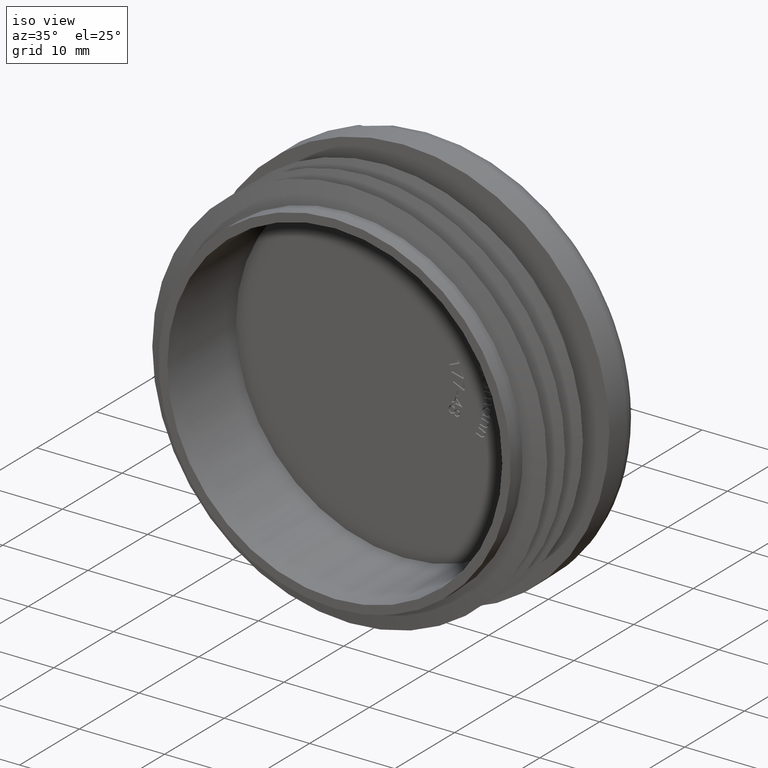
[diagram: clean part render]
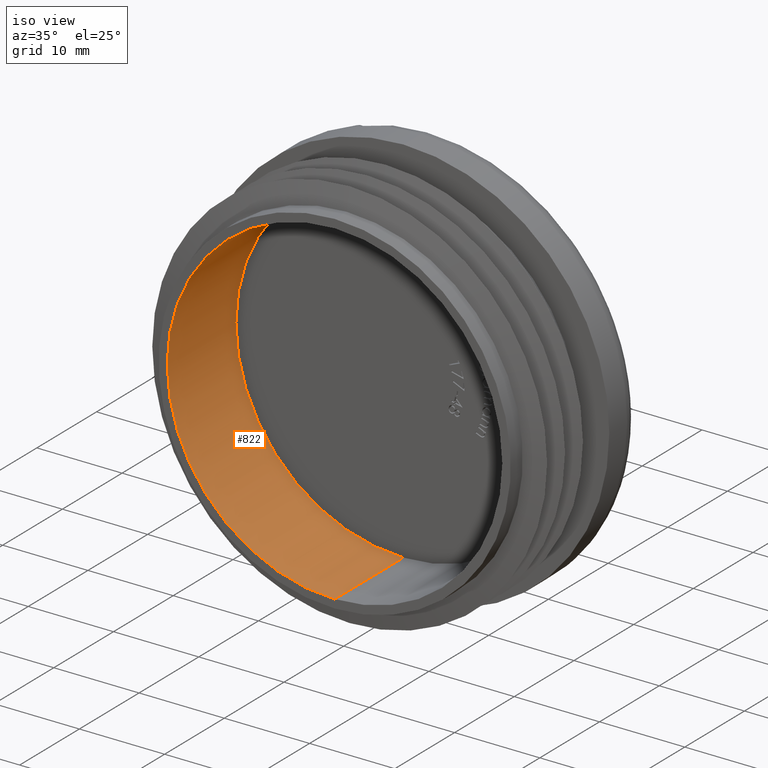
[diagram: tour spotlight — one face highlighted and labeled with its STEP entity id]
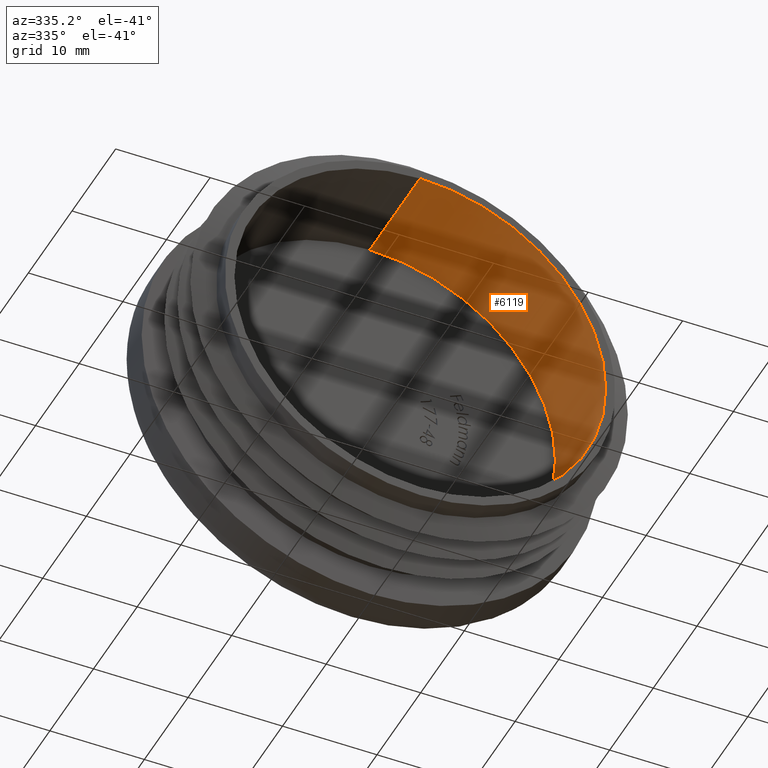
[diagram: tour spotlight — one face highlighted and labeled with its STEP entity id]
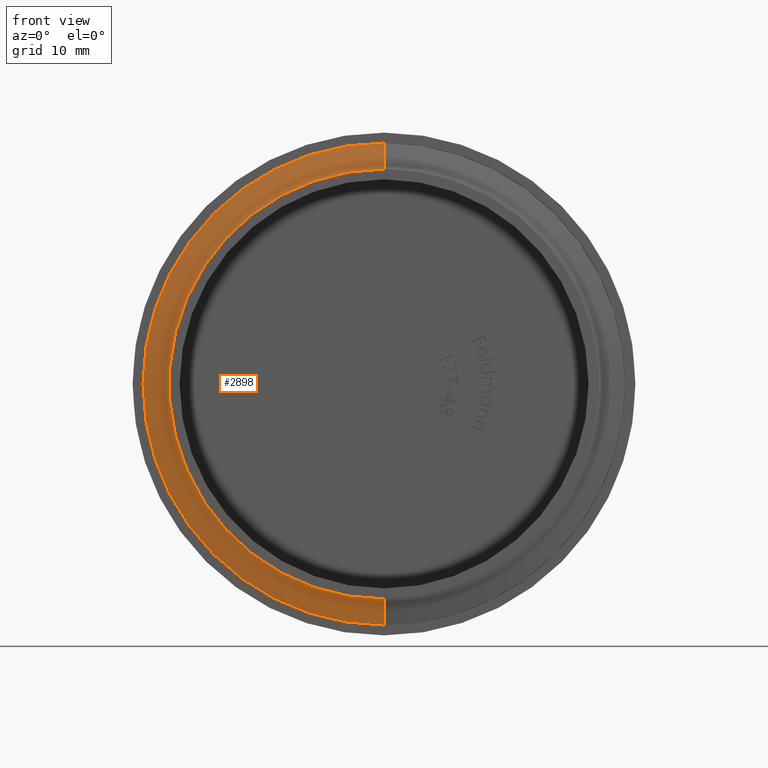
[diagram: tour spotlight — one face highlighted and labeled with its STEP entity id]
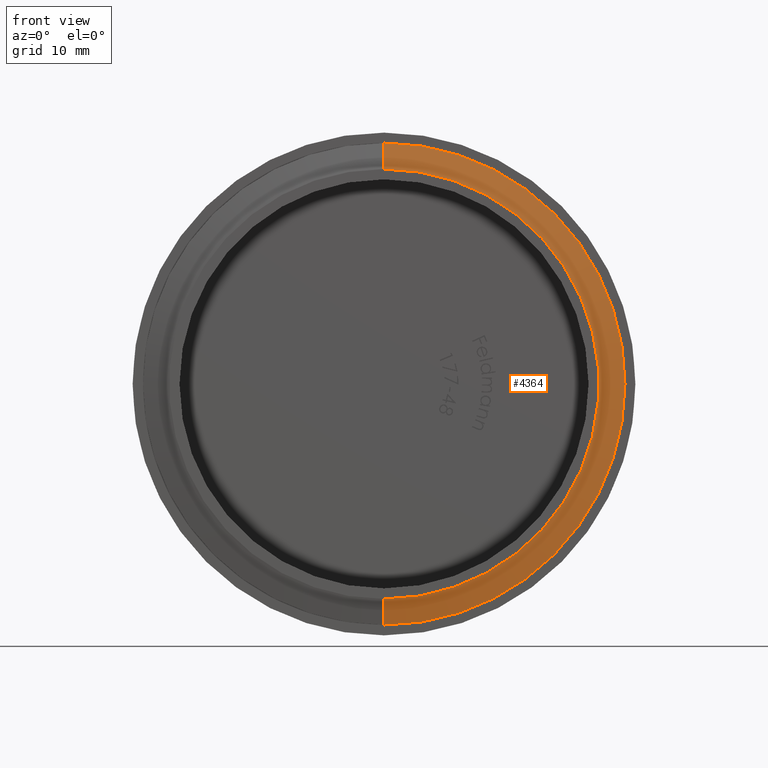
[diagram: tour spotlight — one face highlighted and labeled with its STEP entity id]
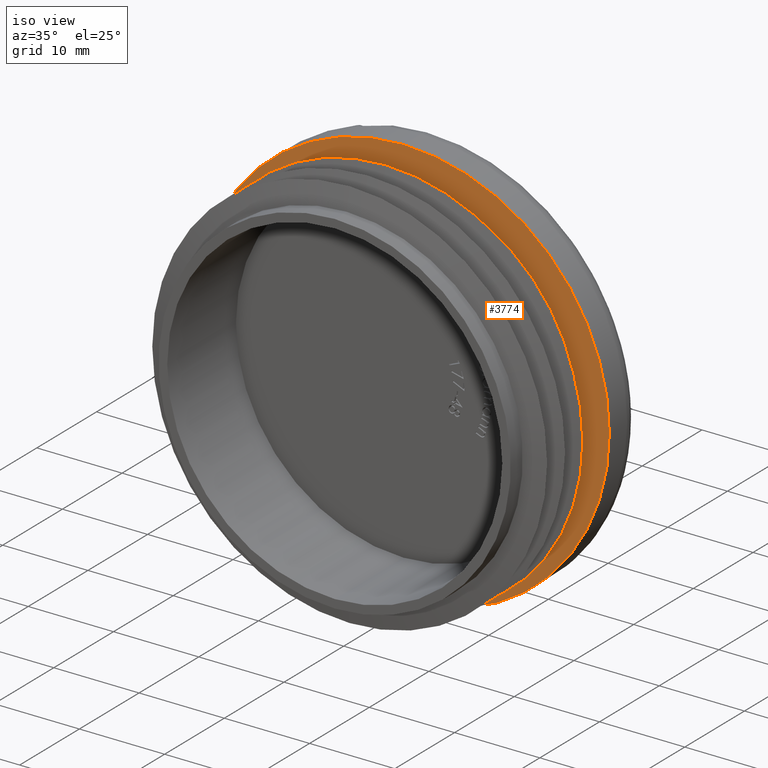
[diagram: tour spotlight — one face highlighted and labeled with its STEP entity id]
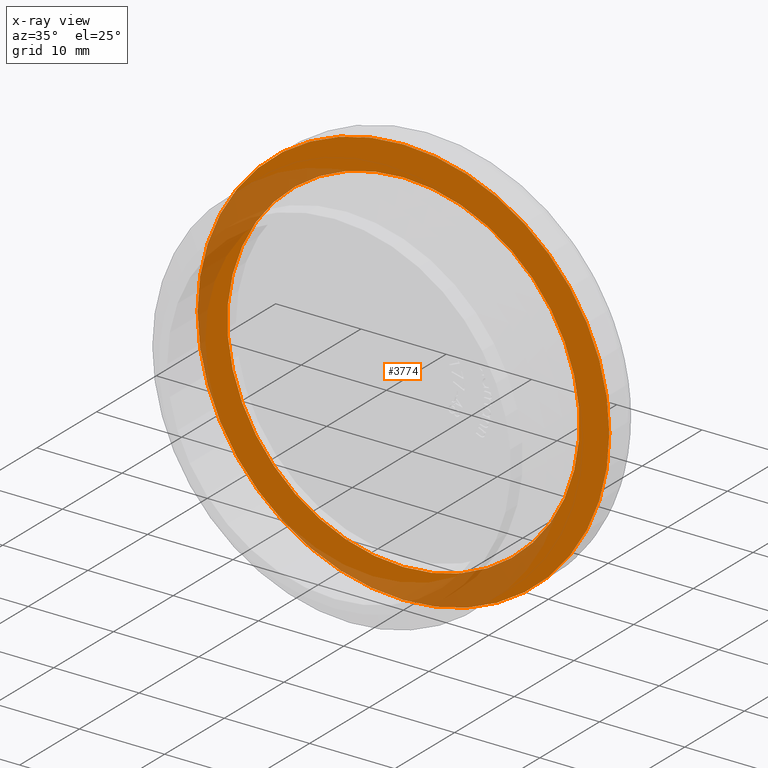
[diagram: x-ray of the same camera — body ghosted, this tour face saturated]
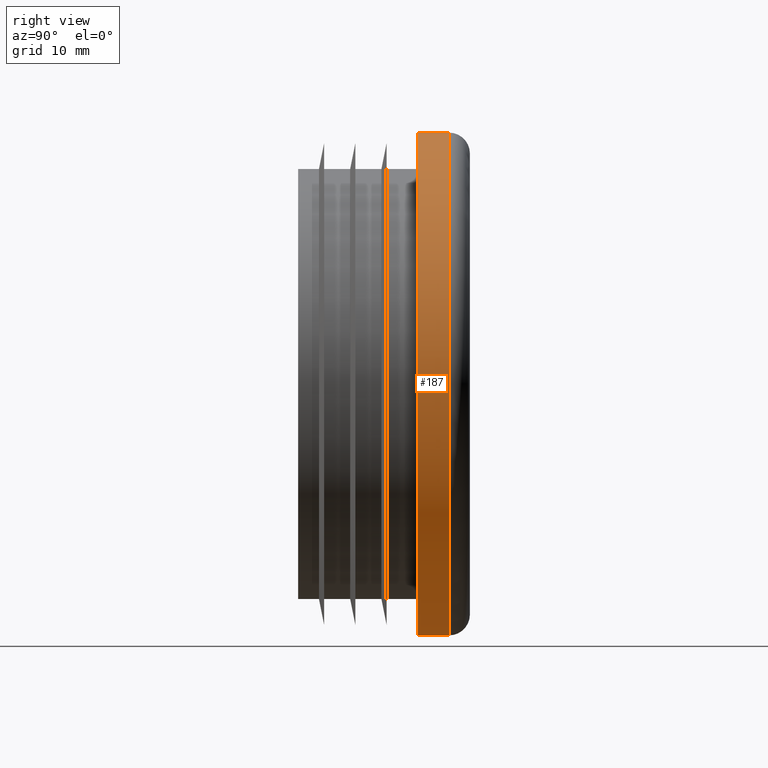
[diagram: tour spotlight — one face highlighted and labeled with its STEP entity id]
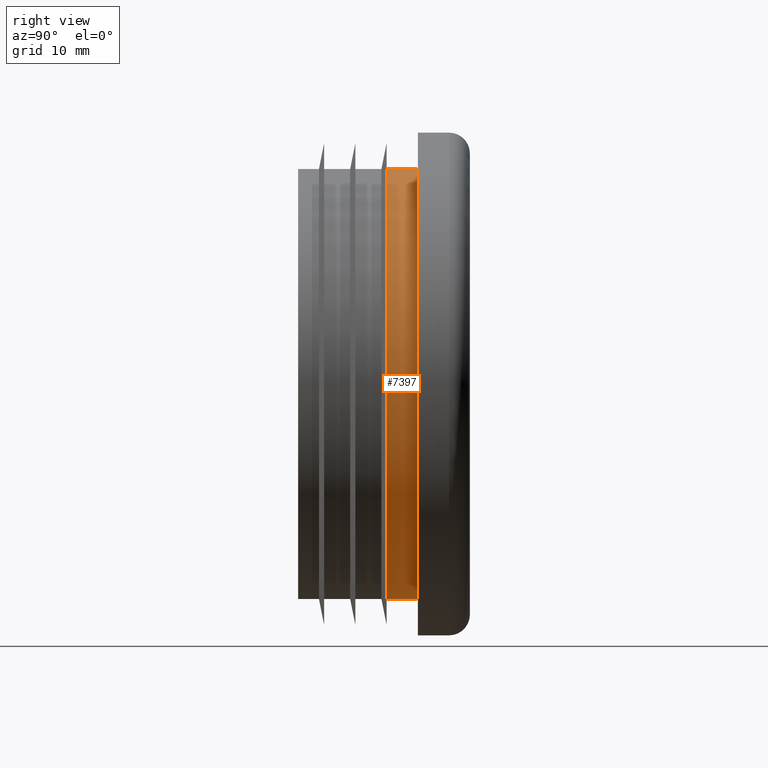
[diagram: tour spotlight — one face highlighted and labeled with its STEP entity id]
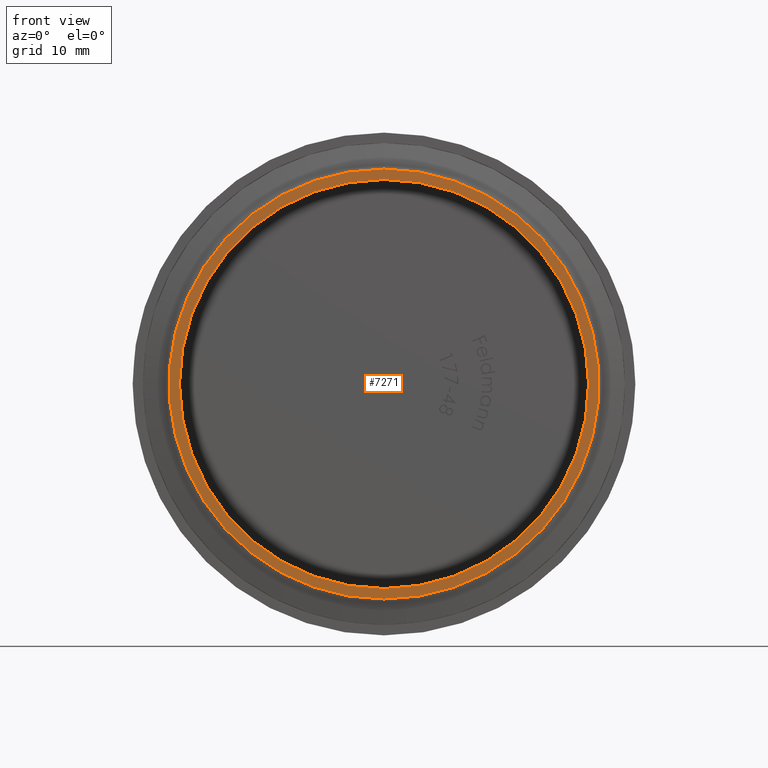
[diagram: tour spotlight — one face highlighted and labeled with its STEP entity id]
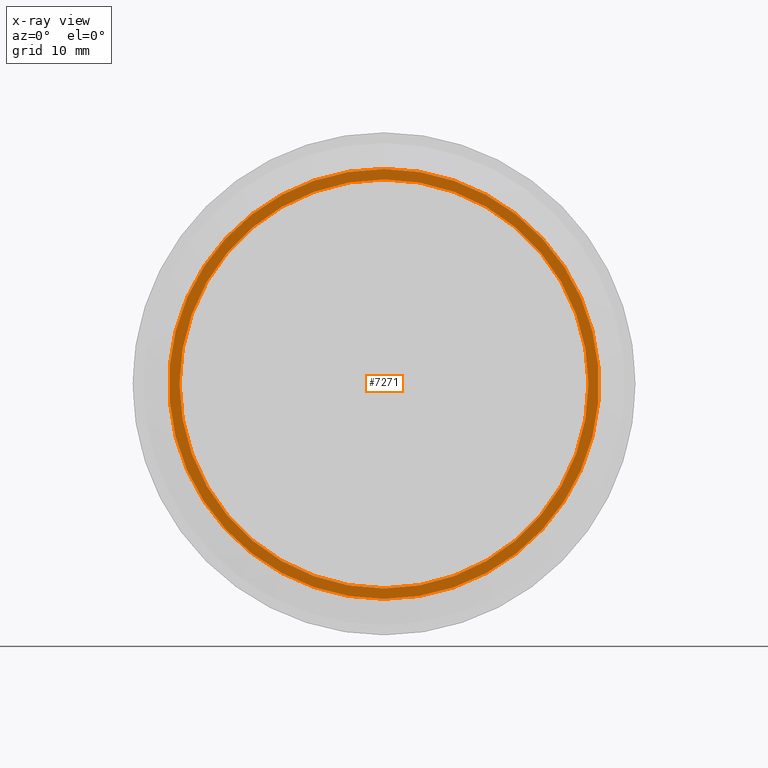
[diagram: x-ray of the same camera — body ghosted, this tour face saturated]
A machine part: a face-by-face anatomy tour. The part has 201 B-rep faces; the first image is the clean iso view, then the 8 largest visible faces are spotlighted one at a time (largest first), each with its STEP entity span.

Face 1 — iso view, entity #822. In plain terms, the highlighted cylindrical surface (partial cylindrical patch) has radius 19.65 mm, axis along (-0, 1, -0).
Definition (entity closure, byte-faithful):
#92 = VERTEX_POINT ( 'NONE', #5206 ) ;
#135 = EDGE_CURVE ( 'NONE', #451, #92, #1785, .T. ) ;
#326 = EDGE_CURVE ( 'NONE', #7831, #451, #6766, .T. ) ;
#451 = VERTEX_POINT ( 'NONE', #2840 ) ;
#822 = ADVANCED_FACE ( 'NONE', ( #8607 ), #8018, .F. ) ;
#1246 = ORIENTED_EDGE ( 'NONE', *, *, #3633, .F. ) ;
#1429 = CARTESIAN_POINT ( 'NONE',  ( 0.0000000000000000000, 0.0000000000000000000, 0.0000000000000000000 ) ) ;
#1705 = AXIS2_PLACEMENT_3D ( 'NONE', #6900, #6810, #6866 ) ;
#1785 = LINE ( 'NONE', #5117, #7411 ) ;
#2174 = DIRECTION ( 'NONE',  ( 0.0000000000000000000, 0.0000000000000000000, 1.000000000000000000 ) ) ;
#2616 = CARTESIAN_POINT ( 'NONE',  ( 0.0000000000000000000, 0.0000000000000000000, 19.64999999999999900 ) ) ;
#2768 = AXIS2_PLACEMENT_3D ( 'NONE', #1429, #6623, #2174 ) ;
#2840 = CARTESIAN_POINT ( 'NONE',  ( 2.406430960324548600E-015, -11.50000000000000000, -19.64999999999999900 ) ) ;
#3154 = DIRECTION ( 'NONE',  ( 0.0000000000000000000, 0.0000000000000000000, -1.000000000000000000 ) ) ;
#3171 = DIRECTION ( 'NONE',  ( 0.0000000000000000000, -1.000000000000000000, 0.0000000000000000000 ) ) ;
#3190 = CARTESIAN_POINT ( 'NONE',  ( 0.0000000000000000000, -11.50000000000000000, 0.0000000000000000000 ) ) ;
#3460 = EDGE_CURVE ( 'NONE', #7831, #4304, #8896, .T. ) ;
#3529 = CARTESIAN_POINT ( 'NONE',  ( 0.0000000000000000000, -11.50000000000000000, 19.64999999999999900 ) ) ;
#3633 = EDGE_CURVE ( 'NONE', #4304, #92, #4529, .T. ) ;
#4287 = ORIENTED_EDGE ( 'NONE', *, *, #326, .T. ) ;
#4304 = VERTEX_POINT ( 'NONE', #2616 ) ;
#4529 = CIRCLE ( 'NONE', #2768, 19.64999999999999900 ) ;
#5099 = DIRECTION ( 'NONE',  ( -0.0000000000000000000, 1.000000000000000000, -0.0000000000000000000 ) ) ;
#5117 = CARTESIAN_POINT ( 'NONE',  ( 2.406430960324548600E-015, -11.50000000000000000, -19.64999999999999900 ) ) ;
#5206 = CARTESIAN_POINT ( 'NONE',  ( 2.406430960324548600E-015, 0.0000000000000000000, -19.64999999999999900 ) ) ;
#5601 = AXIS2_PLACEMENT_3D ( 'NONE', #3190, #3171, #3154 ) ;
#5970 = EDGE_LOOP ( 'NONE', ( #4287, #8291, #1246, #9280 ) ) ;
#6623 = DIRECTION ( 'NONE',  ( -0.0000000000000000000, -1.000000000000000000, -0.0000000000000000000 ) ) ;
#6766 = CIRCLE ( 'NONE', #5601, 19.64999999999999900 ) ;
#6810 = DIRECTION ( 'NONE',  ( -0.0000000000000000000, 1.000000000000000000, -0.0000000000000000000 ) ) ;
#6866 = DIRECTION ( 'NONE',  ( 0.0000000000000000000, 0.0000000000000000000, 1.000000000000000000 ) ) ;
#6900 = CARTESIAN_POINT ( 'NONE',  ( 0.0000000000000000000, -11.50000000000000000, 0.0000000000000000000 ) ) ;
#7351 = VECTOR ( 'NONE', #8484, 1000.000000000000000 ) ;
#7411 = VECTOR ( 'NONE', #5099, 1000.000000000000000 ) ;
#7831 = VERTEX_POINT ( 'NONE', #9025 ) ;
#8018 = CYLINDRICAL_SURFACE ( 'NONE', #1705, 19.64999999999999900 ) ;
#8291 = ORIENTED_EDGE ( 'NONE', *, *, #135, .T. ) ;
#8484 = DIRECTION ( 'NONE',  ( -0.0000000000000000000, 1.000000000000000000, -0.0000000000000000000 ) ) ;
#8607 = FACE_OUTER_BOUND ( 'NONE', #5970, .T. ) ;
#8896 = LINE ( 'NONE', #3529, #7351 ) ;
#9025 = CARTESIAN_POINT ( 'NONE',  ( 0.0000000000000000000, -11.50000000000000000, 19.64999999999999900 ) ) ;
#9280 = ORIENTED_EDGE ( 'NONE', *, *, #3460, .F. ) ;

Face 2 — auxiliary view, entity #6119. In plain terms, the highlighted cylindrical surface (partial cylindrical patch) has radius 19.65 mm, axis along (-0, 1, -0).
Definition (entity closure, byte-faithful):
#92 = VERTEX_POINT ( 'NONE', #5206 ) ;
#135 = EDGE_CURVE ( 'NONE', #451, #92, #1785, .T. ) ;
#284 = CYLINDRICAL_SURFACE ( 'NONE', #6282, 19.64999999999999900 ) ;
#451 = VERTEX_POINT ( 'NONE', #2840 ) ;
#512 = FACE_OUTER_BOUND ( 'NONE', #3525, .T. ) ;
#555 = EDGE_CURVE ( 'NONE', #451, #7831, #1902, .T. ) ;
#627 = AXIS2_PLACEMENT_3D ( 'NONE', #7947, #3644, #8586 ) ;
#978 = DIRECTION ( 'NONE',  ( 0.0000000000000000000, 0.0000000000000000000, -1.000000000000000000 ) ) ;
#992 = DIRECTION ( 'NONE',  ( 0.0000000000000000000, -1.000000000000000000, 0.0000000000000000000 ) ) ;
#1009 = CARTESIAN_POINT ( 'NONE',  ( 0.0000000000000000000, -11.50000000000000000, 0.0000000000000000000 ) ) ;
#1065 = DIRECTION ( 'NONE',  ( -0.0000000000000000000, 1.000000000000000000, -0.0000000000000000000 ) ) ;
#1447 = ORIENTED_EDGE ( 'NONE', *, *, #555, .T. ) ;
#1701 = ORIENTED_EDGE ( 'NONE', *, *, #135, .F. ) ;
#1785 = LINE ( 'NONE', #5117, #7411 ) ;
#1902 = CIRCLE ( 'NONE', #8373, 19.64999999999999900 ) ;
#2616 = CARTESIAN_POINT ( 'NONE',  ( 0.0000000000000000000, 0.0000000000000000000, 19.64999999999999900 ) ) ;
#2840 = CARTESIAN_POINT ( 'NONE',  ( 2.406430960324548600E-015, -11.50000000000000000, -19.64999999999999900 ) ) ;
#3233 = ORIENTED_EDGE ( 'NONE', *, *, #3460, .T. ) ;
#3460 = EDGE_CURVE ( 'NONE', #7831, #4304, #8896, .T. ) ;
#3525 = EDGE_LOOP ( 'NONE', ( #1701, #1447, #3233, #9020 ) ) ;
#3529 = CARTESIAN_POINT ( 'NONE',  ( 0.0000000000000000000, -11.50000000000000000, 19.64999999999999900 ) ) ;
#3644 = DIRECTION ( 'NONE',  ( -0.0000000000000000000, -1.000000000000000000, -0.0000000000000000000 ) ) ;
#4304 = VERTEX_POINT ( 'NONE', #2616 ) ;
#4844 = EDGE_CURVE ( 'NONE', #92, #4304, #7859, .T. ) ;
#5099 = DIRECTION ( 'NONE',  ( -0.0000000000000000000, 1.000000000000000000, -0.0000000000000000000 ) ) ;
#5117 = CARTESIAN_POINT ( 'NONE',  ( 2.406430960324548600E-015, -11.50000000000000000, -19.64999999999999900 ) ) ;
#5206 = CARTESIAN_POINT ( 'NONE',  ( 2.406430960324548600E-015, 0.0000000000000000000, -19.64999999999999900 ) ) ;
#5559 = CARTESIAN_POINT ( 'NONE',  ( 0.0000000000000000000, -11.50000000000000000, 0.0000000000000000000 ) ) ;
#6119 = ADVANCED_FACE ( 'NONE', ( #512 ), #284, .F. ) ;
#6282 = AXIS2_PLACEMENT_3D ( 'NONE', #5559, #1065, #6288 ) ;
#6288 = DIRECTION ( 'NONE',  ( 0.0000000000000000000, 0.0000000000000000000, 1.000000000000000000 ) ) ;
#7351 = VECTOR ( 'NONE', #8484, 1000.000000000000000 ) ;
#7411 = VECTOR ( 'NONE', #5099, 1000.000000000000000 ) ;
#7831 = VERTEX_POINT ( 'NONE', #9025 ) ;
#7859 = CIRCLE ( 'NONE', #627, 19.64999999999999900 ) ;
#7947 = CARTESIAN_POINT ( 'NONE',  ( 0.0000000000000000000, 0.0000000000000000000, 0.0000000000000000000 ) ) ;
#8373 = AXIS2_PLACEMENT_3D ( 'NONE', #1009, #992, #978 ) ;
#8484 = DIRECTION ( 'NONE',  ( -0.0000000000000000000, 1.000000000000000000, -0.0000000000000000000 ) ) ;
#8586 = DIRECTION ( 'NONE',  ( 0.0000000000000000000, 0.0000000000000000000, 1.000000000000000000 ) ) ;
#8896 = LINE ( 'NONE', #3529, #7351 ) ;
#9020 = ORIENTED_EDGE ( 'NONE', *, *, #4844, .F. ) ;
#9025 = CARTESIAN_POINT ( 'NONE',  ( 0.0000000000000000000, -11.50000000000000000, 19.64999999999999900 ) ) ;

Face 3 — front view, entity #2898. In plain terms, the highlighted conical surface has half-angle 78.69 deg.
Definition (entity closure, byte-faithful):
#270 = DIRECTION ( 'NONE',  ( 0.0000000000000000000, 0.0000000000000000000, 1.000000000000000000 ) ) ;
#286 = EDGE_CURVE ( 'NONE', #2970, #3897, #1083, .T. ) ;
#449 = CIRCLE ( 'NONE', #6957, 20.64999999999999900 ) ;
#468 = ORIENTED_EDGE ( 'NONE', *, *, #4455, .F. ) ;
#494 = ORIENTED_EDGE ( 'NONE', *, *, #2346, .F. ) ;
#518 = DIRECTION ( 'NONE',  ( -0.0000000000000000000, 1.000000000000000000, -0.0000000000000000000 ) ) ;
#875 = CARTESIAN_POINT ( 'NONE',  ( 2.681976490132703100E-015, -9.500000000000001800, -20.64999999999999900 ) ) ;
#1054 = CARTESIAN_POINT ( 'NONE',  ( 0.0000000000000000000, -9.500000000000001800, 20.64999999999999900 ) ) ;
#1083 = LINE ( 'NONE', #3581, #8513 ) ;
#1378 = CARTESIAN_POINT ( 'NONE',  ( 2.528895640239284100E-015, -9.500000000000001800, -20.64999999999999900 ) ) ;
#2335 = CARTESIAN_POINT ( 'NONE',  ( 0.0000000000000000000, -9.000000000000001800, 0.0000000000000000000 ) ) ;
#2346 = EDGE_CURVE ( 'NONE', #9240, #5625, #5507, .T. ) ;
#2891 = DIRECTION ( 'NONE',  ( 1.200864985790634400E-016, 0.1961161351381842400, -0.9805806756909202200 ) ) ;
#2898 = ADVANCED_FACE ( 'NONE', ( #6047 ), #7477, .T. ) ;
#2970 = VERTEX_POINT ( 'NONE', #1054 ) ;
#3096 = DIRECTION ( 'NONE',  ( 0.0000000000000000000, 0.0000000000000000000, 1.000000000000000000 ) ) ;
#3213 = EDGE_LOOP ( 'NONE', ( #494, #7601, #6190, #468 ) ) ;
#3506 = VECTOR ( 'NONE', #2891, 999.9999999999998900 ) ;
#3581 = CARTESIAN_POINT ( 'NONE',  ( 0.0000000000000000000, -9.500000000000001800, 20.64999999999999900 ) ) ;
#3592 = DIRECTION ( 'NONE',  ( 0.0000000000000000000, 0.1961161351381842400, 0.9805806756909202200 ) ) ;
#3897 = VERTEX_POINT ( 'NONE', #7096 ) ;
#4021 = CARTESIAN_POINT ( 'NONE',  ( 0.0000000000000000000, -9.500000000000001800, 0.0000000000000000000 ) ) ;
#4224 = CARTESIAN_POINT ( 'NONE',  ( 2.835057340026122400E-015, -9.000000000000001800, -23.14999999999999900 ) ) ;
#4336 = AXIS2_PLACEMENT_3D ( 'NONE', #2335, #7462, #3096 ) ;
#4455 = EDGE_CURVE ( 'NONE', #5625, #3897, #6377, .T. ) ;
#5008 = CARTESIAN_POINT ( 'NONE',  ( 0.0000000000000000000, -9.500000000000001800, 0.0000000000000000000 ) ) ;
#5507 = LINE ( 'NONE', #1378, #3506 ) ;
#5625 = VERTEX_POINT ( 'NONE', #4224 ) ;
#5753 = DIRECTION ( 'NONE',  ( 0.0000000000000000000, 0.0000000000000000000, 1.000000000000000000 ) ) ;
#6047 = FACE_OUTER_BOUND ( 'NONE', #3213, .T. ) ;
#6190 = ORIENTED_EDGE ( 'NONE', *, *, #286, .T. ) ;
#6377 = CIRCLE ( 'NONE', #4336, 23.14999999999999900 ) ;
#6596 = AXIS2_PLACEMENT_3D ( 'NONE', #4021, #8911, #270 ) ;
#6957 = AXIS2_PLACEMENT_3D ( 'NONE', #5008, #518, #5753 ) ;
#7096 = CARTESIAN_POINT ( 'NONE',  ( 0.0000000000000000000, -9.000000000000001800, 23.14999999999999900 ) ) ;
#7462 = DIRECTION ( 'NONE',  ( -0.0000000000000000000, 1.000000000000000000, -0.0000000000000000000 ) ) ;
#7477 = CONICAL_SURFACE ( 'NONE', #6596, 20.64999999999999900, 1.373400766945015700 ) ;
#7601 = ORIENTED_EDGE ( 'NONE', *, *, #9014, .T. ) ;
#8513 = VECTOR ( 'NONE', #3592, 999.9999999999998900 ) ;
#8911 = DIRECTION ( 'NONE',  ( -0.0000000000000000000, 1.000000000000000000, -0.0000000000000000000 ) ) ;
#9014 = EDGE_CURVE ( 'NONE', #9240, #2970, #449, .T. ) ;
#9240 = VERTEX_POINT ( 'NONE', #875 ) ;

Face 4 — front view, entity #4364. In plain terms, the highlighted conical surface has half-angle 78.69 deg.
Definition (entity closure, byte-faithful):
#286 = EDGE_CURVE ( 'NONE', #2970, #3897, #1083, .T. ) ;
#578 = DIRECTION ( 'NONE',  ( 0.0000000000000000000, 0.0000000000000000000, 1.000000000000000000 ) ) ;
#875 = CARTESIAN_POINT ( 'NONE',  ( 2.681976490132703100E-015, -9.500000000000001800, -20.64999999999999900 ) ) ;
#890 = CONICAL_SURFACE ( 'NONE', #1848, 20.64999999999999900, 1.373400766945015700 ) ;
#975 = EDGE_CURVE ( 'NONE', #2970, #9240, #4022, .T. ) ;
#1054 = CARTESIAN_POINT ( 'NONE',  ( 0.0000000000000000000, -9.500000000000001800, 20.64999999999999900 ) ) ;
#1083 = LINE ( 'NONE', #3581, #8513 ) ;
#1136 = FACE_OUTER_BOUND ( 'NONE', #2499, .T. ) ;
#1378 = CARTESIAN_POINT ( 'NONE',  ( 2.528895640239284100E-015, -9.500000000000001800, -20.64999999999999900 ) ) ;
#1848 = AXIS2_PLACEMENT_3D ( 'NONE', #3597, #8550, #578 ) ;
#2346 = EDGE_CURVE ( 'NONE', #9240, #5625, #5507, .T. ) ;
#2499 = EDGE_LOOP ( 'NONE', ( #8731, #8629, #7296, #6882 ) ) ;
#2891 = DIRECTION ( 'NONE',  ( 1.200864985790634400E-016, 0.1961161351381842400, -0.9805806756909202200 ) ) ;
#2956 = EDGE_CURVE ( 'NONE', #3897, #5625, #5810, .T. ) ;
#2970 = VERTEX_POINT ( 'NONE', #1054 ) ;
#3504 = DIRECTION ( 'NONE',  ( -0.0000000000000000000, 1.000000000000000000, -0.0000000000000000000 ) ) ;
#3506 = VECTOR ( 'NONE', #2891, 999.9999999999998900 ) ;
#3581 = CARTESIAN_POINT ( 'NONE',  ( 0.0000000000000000000, -9.500000000000001800, 20.64999999999999900 ) ) ;
#3592 = DIRECTION ( 'NONE',  ( 0.0000000000000000000, 0.1961161351381842400, 0.9805806756909202200 ) ) ;
#3597 = CARTESIAN_POINT ( 'NONE',  ( 0.0000000000000000000, -9.500000000000001800, 0.0000000000000000000 ) ) ;
#3690 = AXIS2_PLACEMENT_3D ( 'NONE', #6153, #6033, #6025 ) ;
#3897 = VERTEX_POINT ( 'NONE', #7096 ) ;
#4022 = CIRCLE ( 'NONE', #3690, 20.64999999999999900 ) ;
#4224 = CARTESIAN_POINT ( 'NONE',  ( 2.835057340026122400E-015, -9.000000000000001800, -23.14999999999999900 ) ) ;
#4364 = ADVANCED_FACE ( 'NONE', ( #1136 ), #890, .T. ) ;
#5507 = LINE ( 'NONE', #1378, #3506 ) ;
#5625 = VERTEX_POINT ( 'NONE', #4224 ) ;
#5810 = CIRCLE ( 'NONE', #9252, 23.14999999999999900 ) ;
#6025 = DIRECTION ( 'NONE',  ( 0.0000000000000000000, 0.0000000000000000000, 1.000000000000000000 ) ) ;
#6033 = DIRECTION ( 'NONE',  ( -0.0000000000000000000, 1.000000000000000000, -0.0000000000000000000 ) ) ;
#6153 = CARTESIAN_POINT ( 'NONE',  ( 0.0000000000000000000, -9.500000000000001800, 0.0000000000000000000 ) ) ;
#6882 = ORIENTED_EDGE ( 'NONE', *, *, #286, .F. ) ;
#7096 = CARTESIAN_POINT ( 'NONE',  ( 0.0000000000000000000, -9.000000000000001800, 23.14999999999999900 ) ) ;
#7296 = ORIENTED_EDGE ( 'NONE', *, *, #2956, .F. ) ;
#7824 = CARTESIAN_POINT ( 'NONE',  ( 0.0000000000000000000, -9.000000000000001800, 0.0000000000000000000 ) ) ;
#8470 = DIRECTION ( 'NONE',  ( 0.0000000000000000000, 0.0000000000000000000, 1.000000000000000000 ) ) ;
#8513 = VECTOR ( 'NONE', #3592, 999.9999999999998900 ) ;
#8550 = DIRECTION ( 'NONE',  ( -0.0000000000000000000, 1.000000000000000000, -0.0000000000000000000 ) ) ;
#8629 = ORIENTED_EDGE ( 'NONE', *, *, #2346, .T. ) ;
#8731 = ORIENTED_EDGE ( 'NONE', *, *, #975, .T. ) ;
#9240 = VERTEX_POINT ( 'NONE', #875 ) ;
#9252 = AXIS2_PLACEMENT_3D ( 'NONE', #7824, #3504, #8470 ) ;

Face 5 — iso view, entity #3774. An x-ray twin of the same camera follows (body ghosted, this face saturated) — the face is partly hidden behind the body. In plain terms, the highlighted planar face has unit normal (0, 1, 0).
Definition (entity closure, byte-faithful):
#63 = EDGE_CURVE ( 'NONE', #8127, #4468, #6223, .T. ) ;
#66 = FACE_BOUND ( 'NONE', #117, .T. ) ;
#117 = EDGE_LOOP ( 'NONE', ( #1710, #6688 ) ) ;
#208 = CIRCLE ( 'NONE', #6437, 20.64999999999999900 ) ;
#301 = CARTESIAN_POINT ( 'NONE',  ( 2.528895640239284100E-015, 0.0000000000000000000, -20.64999999999999900 ) ) ;
#404 = CARTESIAN_POINT ( 'NONE',  ( 0.0000000000000000000, 0.0000000000000000000, 0.0000000000000000000 ) ) ;
#730 = PLANE ( 'NONE',  #6731 ) ;
#963 = CARTESIAN_POINT ( 'NONE',  ( 0.0000000000000000000, 0.0000000000000000000, 0.0000000000000000000 ) ) ;
#1121 = CARTESIAN_POINT ( 'NONE',  ( 0.0000000000000000000, 0.0000000000000000000, 0.0000000000000000000 ) ) ;
#1161 = DIRECTION ( 'NONE',  ( 0.0000000000000000000, 0.0000000000000000000, 1.000000000000000000 ) ) ;
#1500 = DIRECTION ( 'NONE',  ( 0.0000000000000000000, 1.000000000000000000, 0.0000000000000000000 ) ) ;
#1710 = ORIENTED_EDGE ( 'NONE', *, *, #3341, .F. ) ;
#1722 = DIRECTION ( 'NONE',  ( 0.0000000000000000000, 0.0000000000000000000, 1.000000000000000000 ) ) ;
#1873 = DIRECTION ( 'NONE',  ( 0.0000000000000000000, 0.0000000000000000000, 1.000000000000000000 ) ) ;
#2149 = EDGE_LOOP ( 'NONE', ( #7421, #8493 ) ) ;
#2957 = CARTESIAN_POINT ( 'NONE',  ( 0.0000000000000000000, 0.0000000000000000000, -24.14999999999999900 ) ) ;
#2977 = CARTESIAN_POINT ( 'NONE',  ( 0.0000000000000000000, 0.0000000000000000000, 0.0000000000000000000 ) ) ;
#3341 = EDGE_CURVE ( 'NONE', #4468, #8127, #208, .T. ) ;
#3774 = ADVANCED_FACE ( 'NONE', ( #4086, #66 ), #730, .F. ) ;
#4086 = FACE_OUTER_BOUND ( 'NONE', #2149, .T. ) ;
#4468 = VERTEX_POINT ( 'NONE', #4560 ) ;
#4560 = CARTESIAN_POINT ( 'NONE',  ( 0.0000000000000000000, 0.0000000000000000000, 20.64999999999999900 ) ) ;
#5639 = DIRECTION ( 'NONE',  ( 0.0000000000000000000, 1.000000000000000000, 0.0000000000000000000 ) ) ;
#5729 = AXIS2_PLACEMENT_3D ( 'NONE', #963, #6192, #1722 ) ;
#5878 = DIRECTION ( 'NONE',  ( 0.0000000000000000000, 0.0000000000000000000, 1.000000000000000000 ) ) ;
#5888 = DIRECTION ( 'NONE',  ( -0.0000000000000000000, -1.000000000000000000, -0.0000000000000000000 ) ) ;
#5900 = CARTESIAN_POINT ( 'NONE',  ( 0.0000000000000000000, 0.0000000000000000000, 0.0000000000000000000 ) ) ;
#6192 = DIRECTION ( 'NONE',  ( 0.0000000000000000000, 1.000000000000000000, 0.0000000000000000000 ) ) ;
#6223 = CIRCLE ( 'NONE', #8963, 20.64999999999999900 ) ;
#6336 = DIRECTION ( 'NONE',  ( -0.0000000000000000000, -1.000000000000000000, -0.0000000000000000000 ) ) ;
#6408 = EDGE_CURVE ( 'NONE', #8133, #7218, #8533, .T. ) ;
#6437 = AXIS2_PLACEMENT_3D ( 'NONE', #1121, #6336, #1873 ) ;
#6688 = ORIENTED_EDGE ( 'NONE', *, *, #63, .F. ) ;
#6692 = DIRECTION ( 'NONE',  ( 0.0000000000000000000, -0.0000000000000000000, 1.000000000000000000 ) ) ;
#6731 = AXIS2_PLACEMENT_3D ( 'NONE', #2977, #1500, #6692 ) ;
#7218 = VERTEX_POINT ( 'NONE', #2957 ) ;
#7421 = ORIENTED_EDGE ( 'NONE', *, *, #7667, .F. ) ;
#7667 = EDGE_CURVE ( 'NONE', #7218, #8133, #9130, .T. ) ;
#8105 = AXIS2_PLACEMENT_3D ( 'NONE', #404, #5639, #1161 ) ;
#8127 = VERTEX_POINT ( 'NONE', #301 ) ;
#8133 = VERTEX_POINT ( 'NONE', #8935 ) ;
#8493 = ORIENTED_EDGE ( 'NONE', *, *, #6408, .F. ) ;
#8533 = CIRCLE ( 'NONE', #8105, 24.14999999999999900 ) ;
#8935 = CARTESIAN_POINT ( 'NONE',  ( 2.957522019940857900E-015, 0.0000000000000000000, 24.14999999999999900 ) ) ;
#8963 = AXIS2_PLACEMENT_3D ( 'NONE', #5900, #5888, #5878 ) ;
#9130 = CIRCLE ( 'NONE', #5729, 24.14999999999999900 ) ;

Face 6 — right view, entity #187. In plain terms, the highlighted cylindrical surface (partial cylindrical patch) has radius 24.15 mm, axis along (-0, -1, -0).
Definition (entity closure, byte-faithful):
#174 = ORIENTED_EDGE ( 'NONE', *, *, #503, .T. ) ;
#187 = ADVANCED_FACE ( 'NONE', ( #5543 ), #3325, .T. ) ;
#350 = CARTESIAN_POINT ( 'NONE',  ( 2.957522019940857900E-015, 3.000000000000000000, 24.14999999999999900 ) ) ;
#404 = CARTESIAN_POINT ( 'NONE',  ( 0.0000000000000000000, 0.0000000000000000000, 0.0000000000000000000 ) ) ;
#501 = LINE ( 'NONE', #7654, #8039 ) ;
#503 = EDGE_CURVE ( 'NONE', #7163, #6845, #5853, .T. ) ;
#586 = LINE ( 'NONE', #9079, #8348 ) ;
#614 = ORIENTED_EDGE ( 'NONE', *, *, #7852, .T. ) ;
#1161 = DIRECTION ( 'NONE',  ( 0.0000000000000000000, 0.0000000000000000000, 1.000000000000000000 ) ) ;
#1747 = DIRECTION ( 'NONE',  ( 0.0000000000000000000, 0.0000000000000000000, 1.000000000000000000 ) ) ;
#1779 = DIRECTION ( 'NONE',  ( -0.0000000000000000000, -1.000000000000000000, -0.0000000000000000000 ) ) ;
#1796 = CARTESIAN_POINT ( 'NONE',  ( 0.0000000000000000000, 3.000000000000000000, 0.0000000000000000000 ) ) ;
#2957 = CARTESIAN_POINT ( 'NONE',  ( 0.0000000000000000000, 0.0000000000000000000, -24.14999999999999900 ) ) ;
#3325 = CYLINDRICAL_SURFACE ( 'NONE', #4597, 24.14999999999999900 ) ;
#4407 = DIRECTION ( 'NONE',  ( 0.0000000000000000000, 0.0000000000000000000, -1.000000000000000000 ) ) ;
#4416 = DIRECTION ( 'NONE',  ( -0.0000000000000000000, -1.000000000000000000, -0.0000000000000000000 ) ) ;
#4482 = CARTESIAN_POINT ( 'NONE',  ( 0.0000000000000000000, 5.000000000000000000, 0.0000000000000000000 ) ) ;
#4597 = AXIS2_PLACEMENT_3D ( 'NONE', #4482, #4416, #4407 ) ;
#4868 = ORIENTED_EDGE ( 'NONE', *, *, #6408, .T. ) ;
#5307 = EDGE_LOOP ( 'NONE', ( #174, #614, #4868, #8216 ) ) ;
#5543 = FACE_OUTER_BOUND ( 'NONE', #5307, .T. ) ;
#5639 = DIRECTION ( 'NONE',  ( 0.0000000000000000000, 1.000000000000000000, 0.0000000000000000000 ) ) ;
#5701 = DIRECTION ( 'NONE',  ( -0.0000000000000000000, -1.000000000000000000, -0.0000000000000000000 ) ) ;
#5853 = CIRCLE ( 'NONE', #7495, 24.14999999999999900 ) ;
#6408 = EDGE_CURVE ( 'NONE', #8133, #7218, #8533, .T. ) ;
#6798 = EDGE_CURVE ( 'NONE', #7163, #7218, #501, .T. ) ;
#6845 = VERTEX_POINT ( 'NONE', #350 ) ;
#7163 = VERTEX_POINT ( 'NONE', #7278 ) ;
#7218 = VERTEX_POINT ( 'NONE', #2957 ) ;
#7278 = CARTESIAN_POINT ( 'NONE',  ( 0.0000000000000000000, 3.000000000000000000, -24.14999999999999900 ) ) ;
#7495 = AXIS2_PLACEMENT_3D ( 'NONE', #1796, #1779, #1747 ) ;
#7654 = CARTESIAN_POINT ( 'NONE',  ( 0.0000000000000000000, 5.000000000000000000, -24.14999999999999900 ) ) ;
#7852 = EDGE_CURVE ( 'NONE', #6845, #8133, #586, .T. ) ;
#8039 = VECTOR ( 'NONE', #8304, 1000.000000000000000 ) ;
#8105 = AXIS2_PLACEMENT_3D ( 'NONE', #404, #5639, #1161 ) ;
#8133 = VERTEX_POINT ( 'NONE', #8935 ) ;
#8216 = ORIENTED_EDGE ( 'NONE', *, *, #6798, .F. ) ;
#8304 = DIRECTION ( 'NONE',  ( -0.0000000000000000000, -1.000000000000000000, -0.0000000000000000000 ) ) ;
#8348 = VECTOR ( 'NONE', #5701, 1000.000000000000000 ) ;
#8533 = CIRCLE ( 'NONE', #8105, 24.14999999999999900 ) ;
#8935 = CARTESIAN_POINT ( 'NONE',  ( 2.957522019940857900E-015, 0.0000000000000000000, 24.14999999999999900 ) ) ;
#9079 = CARTESIAN_POINT ( 'NONE',  ( 2.957522019940857900E-015, 5.000000000000000000, 24.14999999999999900 ) ) ;

Face 7 — right view, entity #7397. In plain terms, the highlighted cylindrical surface (partial cylindrical patch) has radius 20.65 mm, axis along (-0, 1, -0).
Definition (entity closure, byte-faithful):
#63 = EDGE_CURVE ( 'NONE', #8127, #4468, #6223, .T. ) ;
#301 = CARTESIAN_POINT ( 'NONE',  ( 2.528895640239284100E-015, 0.0000000000000000000, -20.64999999999999900 ) ) ;
#721 = DIRECTION ( 'NONE',  ( -0.0000000000000000000, 1.000000000000000000, -0.0000000000000000000 ) ) ;
#969 = CYLINDRICAL_SURFACE ( 'NONE', #2210, 20.64999999999999900 ) ;
#1205 = FACE_OUTER_BOUND ( 'NONE', #5872, .T. ) ;
#1691 = LINE ( 'NONE', #9303, #5434 ) ;
#1913 = CIRCLE ( 'NONE', #6880, 20.64999999999999900 ) ;
#2210 = AXIS2_PLACEMENT_3D ( 'NONE', #7834, #6520, #4270 ) ;
#2963 = LINE ( 'NONE', #7538, #4737 ) ;
#3354 = VERTEX_POINT ( 'NONE', #4173 ) ;
#3864 = ORIENTED_EDGE ( 'NONE', *, *, #7247, .F. ) ;
#4117 = CARTESIAN_POINT ( 'NONE',  ( 0.0000000000000000000, -2.999999999999999100, 20.64999999999999900 ) ) ;
#4173 = CARTESIAN_POINT ( 'NONE',  ( 2.528895640239284100E-015, -2.999999999999999100, -20.64999999999999900 ) ) ;
#4270 = DIRECTION ( 'NONE',  ( 0.0000000000000000000, 0.0000000000000000000, 1.000000000000000000 ) ) ;
#4468 = VERTEX_POINT ( 'NONE', #4560 ) ;
#4492 = DIRECTION ( 'NONE',  ( 0.0000000000000000000, -1.000000000000000000, 0.0000000000000000000 ) ) ;
#4560 = CARTESIAN_POINT ( 'NONE',  ( 0.0000000000000000000, 0.0000000000000000000, 20.64999999999999900 ) ) ;
#4733 = ORIENTED_EDGE ( 'NONE', *, *, #6603, .T. ) ;
#4737 = VECTOR ( 'NONE', #8196, 1000.000000000000000 ) ;
#4915 = ORIENTED_EDGE ( 'NONE', *, *, #63, .T. ) ;
#5434 = VECTOR ( 'NONE', #721, 1000.000000000000000 ) ;
#5872 = EDGE_LOOP ( 'NONE', ( #3864, #4733, #4915, #6011 ) ) ;
#5878 = DIRECTION ( 'NONE',  ( 0.0000000000000000000, 0.0000000000000000000, 1.000000000000000000 ) ) ;
#5888 = DIRECTION ( 'NONE',  ( -0.0000000000000000000, -1.000000000000000000, -0.0000000000000000000 ) ) ;
#5900 = CARTESIAN_POINT ( 'NONE',  ( 0.0000000000000000000, 0.0000000000000000000, 0.0000000000000000000 ) ) ;
#6011 = ORIENTED_EDGE ( 'NONE', *, *, #6737, .F. ) ;
#6223 = CIRCLE ( 'NONE', #8963, 20.64999999999999900 ) ;
#6349 = VERTEX_POINT ( 'NONE', #4117 ) ;
#6520 = DIRECTION ( 'NONE',  ( -0.0000000000000000000, 1.000000000000000000, -0.0000000000000000000 ) ) ;
#6603 = EDGE_CURVE ( 'NONE', #3354, #8127, #1691, .T. ) ;
#6737 = EDGE_CURVE ( 'NONE', #6349, #4468, #2963, .T. ) ;
#6880 = AXIS2_PLACEMENT_3D ( 'NONE', #8667, #4492, #9322 ) ;
#7247 = EDGE_CURVE ( 'NONE', #3354, #6349, #1913, .T. ) ;
#7397 = ADVANCED_FACE ( 'NONE', ( #1205 ), #969, .T. ) ;
#7538 = CARTESIAN_POINT ( 'NONE',  ( 0.0000000000000000000, -11.50000000000000000, 20.64999999999999900 ) ) ;
#7834 = CARTESIAN_POINT ( 'NONE',  ( 0.0000000000000000000, -11.50000000000000000, 0.0000000000000000000 ) ) ;
#8127 = VERTEX_POINT ( 'NONE', #301 ) ;
#8196 = DIRECTION ( 'NONE',  ( -0.0000000000000000000, 1.000000000000000000, -0.0000000000000000000 ) ) ;
#8667 = CARTESIAN_POINT ( 'NONE',  ( 0.0000000000000000000, -2.999999999999999100, 0.0000000000000000000 ) ) ;
#8963 = AXIS2_PLACEMENT_3D ( 'NONE', #5900, #5888, #5878 ) ;
#9303 = CARTESIAN_POINT ( 'NONE',  ( 2.528895640239284100E-015, -11.50000000000000000, -20.64999999999999900 ) ) ;
#9322 = DIRECTION ( 'NONE',  ( 0.0000000000000000000, 0.0000000000000000000, -1.000000000000000000 ) ) ;

Face 8 — front view, entity #7271. An x-ray twin of the same camera follows (body ghosted, this face saturated) — the face is partly hidden behind the body. In plain terms, the highlighted planar face has unit normal (0, -1, 0).
Definition (entity closure, byte-faithful):
#36 = CARTESIAN_POINT ( 'NONE',  ( 2.528895640239284100E-015, -11.50000000000000000, -20.64999999999999900 ) ) ;
#219 = CARTESIAN_POINT ( 'NONE',  ( 0.0000000000000000000, -11.50000000000000000, 0.0000000000000000000 ) ) ;
#326 = EDGE_CURVE ( 'NONE', #7831, #451, #6766, .T. ) ;
#451 = VERTEX_POINT ( 'NONE', #2840 ) ;
#555 = EDGE_CURVE ( 'NONE', #451, #7831, #1902, .T. ) ;
#685 = EDGE_LOOP ( 'NONE', ( #2172, #2809 ) ) ;
#978 = DIRECTION ( 'NONE',  ( 0.0000000000000000000, 0.0000000000000000000, -1.000000000000000000 ) ) ;
#992 = DIRECTION ( 'NONE',  ( 0.0000000000000000000, -1.000000000000000000, 0.0000000000000000000 ) ) ;
#1009 = CARTESIAN_POINT ( 'NONE',  ( 0.0000000000000000000, -11.50000000000000000, 0.0000000000000000000 ) ) ;
#1506 = EDGE_CURVE ( 'NONE', #7805, #4971, #5516, .T. ) ;
#1729 = DIRECTION ( 'NONE',  ( 0.0000000000000000000, -0.0000000000000000000, -1.000000000000000000 ) ) ;
#1902 = CIRCLE ( 'NONE', #8373, 19.64999999999999900 ) ;
#1988 = CARTESIAN_POINT ( 'NONE',  ( 0.0000000000000000000, -11.50000000000000000, 0.0000000000000000000 ) ) ;
#2172 = ORIENTED_EDGE ( 'NONE', *, *, #1506, .T. ) ;
#2443 = CIRCLE ( 'NONE', #5982, 20.64999999999999900 ) ;
#2526 = AXIS2_PLACEMENT_3D ( 'NONE', #4277, #4272, #4262 ) ;
#2758 = DIRECTION ( 'NONE',  ( 0.0000000000000000000, 0.0000000000000000000, -1.000000000000000000 ) ) ;
#2809 = ORIENTED_EDGE ( 'NONE', *, *, #9004, .T. ) ;
#2840 = CARTESIAN_POINT ( 'NONE',  ( 2.406430960324548600E-015, -11.50000000000000000, -19.64999999999999900 ) ) ;
#3154 = DIRECTION ( 'NONE',  ( 0.0000000000000000000, 0.0000000000000000000, -1.000000000000000000 ) ) ;
#3171 = DIRECTION ( 'NONE',  ( 0.0000000000000000000, -1.000000000000000000, 0.0000000000000000000 ) ) ;
#3190 = CARTESIAN_POINT ( 'NONE',  ( 0.0000000000000000000, -11.50000000000000000, 0.0000000000000000000 ) ) ;
#3337 = CARTESIAN_POINT ( 'NONE',  ( 0.0000000000000000000, -11.50000000000000000, 20.64999999999999900 ) ) ;
#3756 = EDGE_LOOP ( 'NONE', ( #7262, #6730 ) ) ;
#4262 = DIRECTION ( 'NONE',  ( 0.0000000000000000000, 0.0000000000000000000, -1.000000000000000000 ) ) ;
#4272 = DIRECTION ( 'NONE',  ( 0.0000000000000000000, -1.000000000000000000, 0.0000000000000000000 ) ) ;
#4277 = CARTESIAN_POINT ( 'NONE',  ( 0.0000000000000000000, -11.50000000000000000, 0.0000000000000000000 ) ) ;
#4714 = PLANE ( 'NONE',  #8626 ) ;
#4971 = VERTEX_POINT ( 'NONE', #36 ) ;
#5425 = FACE_BOUND ( 'NONE', #3756, .T. ) ;
#5516 = CIRCLE ( 'NONE', #2526, 20.64999999999999900 ) ;
#5601 = AXIS2_PLACEMENT_3D ( 'NONE', #3190, #3171, #3154 ) ;
#5982 = AXIS2_PLACEMENT_3D ( 'NONE', #1988, #7160, #2758 ) ;
#6199 = DIRECTION ( 'NONE',  ( 0.0000000000000000000, -1.000000000000000000, 0.0000000000000000000 ) ) ;
#6730 = ORIENTED_EDGE ( 'NONE', *, *, #555, .F. ) ;
#6766 = CIRCLE ( 'NONE', #5601, 19.64999999999999900 ) ;
#7111 = FACE_OUTER_BOUND ( 'NONE', #685, .T. ) ;
#7160 = DIRECTION ( 'NONE',  ( 0.0000000000000000000, -1.000000000000000000, 0.0000000000000000000 ) ) ;
#7262 = ORIENTED_EDGE ( 'NONE', *, *, #326, .F. ) ;
#7271 = ADVANCED_FACE ( 'NONE', ( #5425, #7111 ), #4714, .T. ) ;
#7805 = VERTEX_POINT ( 'NONE', #3337 ) ;
#7831 = VERTEX_POINT ( 'NONE', #9025 ) ;
#8373 = AXIS2_PLACEMENT_3D ( 'NONE', #1009, #992, #978 ) ;
#8626 = AXIS2_PLACEMENT_3D ( 'NONE', #219, #6199, #1729 ) ;
#9004 = EDGE_CURVE ( 'NONE', #4971, #7805, #2443, .T. ) ;
#9025 = CARTESIAN_POINT ( 'NONE',  ( 0.0000000000000000000, -11.50000000000000000, 19.64999999999999900 ) ) ;